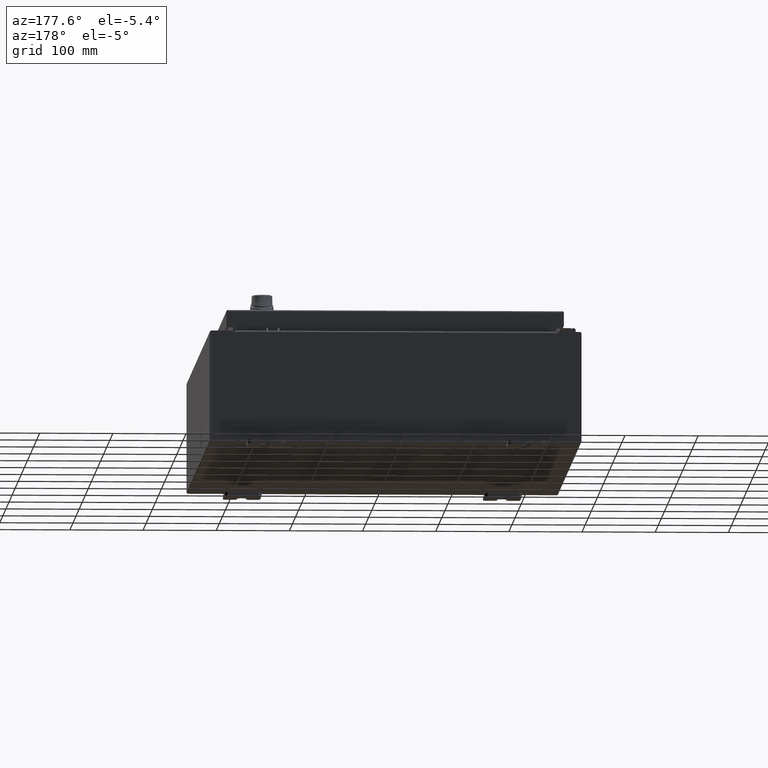
[diagram: clean part render]
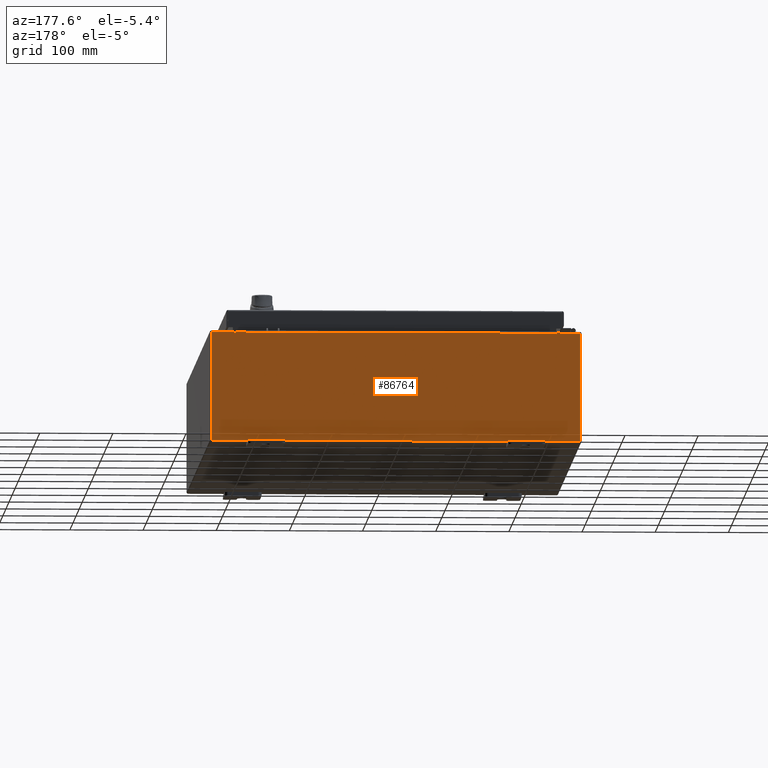
[diagram: same view with one face highlighted and labeled with its STEP entity id]
A machine part, auxiliary view. The second image highlights one B-rep face of the part: STEP entity #86764.
In plain terms, the highlighted planar face has unit normal (0, -1, 0).
Its self-contained STEP definition (entity closure, byte-faithful):
#653 = CARTESIAN_POINT ( 'NONE',  ( -8.637199999999996400, -0.0000000000000000000, 2.874950000000000600 ) ) ;
#1501 = DIRECTION ( 'NONE',  ( 0.0000000000000000000, 0.0000000000000000000, 1.000000000000000000 ) ) ;
#1585 = VECTOR ( 'NONE', #25096, 39.37007874015748100 ) ;
#3833 = AXIS2_PLACEMENT_3D ( 'NONE', #61465, #6721, #70707 ) ;
#4445 = CARTESIAN_POINT ( 'NONE',  ( 8.637200000000000000, 0.0000000000000000000, 2.912300000000000600 ) ) ;
#4482 = LINE ( 'NONE', #79484, #1585 ) ;
#5955 = VERTEX_POINT ( 'NONE', #4445 ) ;
#6480 = VERTEX_POINT ( 'NONE', #41391 ) ;
#6721 = DIRECTION ( 'NONE',  ( 0.0000000000000000000, -1.000000000000000000, 0.0000000000000000000 ) ) ;
#7218 = VERTEX_POINT ( 'NONE', #97298 ) ;
#8973 = CARTESIAN_POINT ( 'NONE',  ( 8.674549999999813500, -0.0000000000000000000, -5.647877341832707700E-013 ) ) ;
#11235 = EDGE_LOOP ( 'NONE', ( #83068, #27106, #63090, #53075, #77131, #61195, #94875, #53794, #17752, #58525, #36137, #80576 ) ) ;
#12021 = AXIS2_PLACEMENT_3D ( 'NONE', #43651, #107660, #52834 ) ;
#12041 = VECTOR ( 'NONE', #95657, 39.37007874015748100 ) ;
#17297 = LINE ( 'NONE', #113691, #111726 ) ;
#17752 = ORIENTED_EDGE ( 'NONE', *, *, #74899, .T. ) ;
#17897 = EDGE_CURVE ( 'NONE', #29270, #116234, #47215, .T. ) ;
#17986 = FACE_OUTER_BOUND ( 'NONE', #11235, .T. ) ;
#18159 = DIRECTION ( 'NONE',  ( -6.510859170600007400E-014, 0.0000000000000000000, -1.000000000000000000 ) ) ;
#20502 = DIRECTION ( 'NONE',  ( -0.0000000000000000000, 1.000000000000000000, -0.0000000000000000000 ) ) ;
#22597 = EDGE_CURVE ( 'NONE', #87599, #68899, #85029, .T. ) ;
#23013 = VECTOR ( 'NONE', #107024, 39.37007874015748100 ) ;
#23794 = LINE ( 'NONE', #8973, #45249 ) ;
#24063 = CARTESIAN_POINT ( 'NONE',  ( -9.925300000000000000, 0.0000000000000000000, 2.925300000000000500 ) ) ;
#24114 = CARTESIAN_POINT ( 'NONE',  ( 8.674550000000000000, 0.0000000000000000000, 2.874950000000000600 ) ) ;
#25096 = DIRECTION ( 'NONE',  ( -0.0000000000000000000, -0.0000000000000000000, 1.000000000000000000 ) ) ;
#25903 = EDGE_CURVE ( 'NONE', #53575, #6480, #4482, .T. ) ;
#26517 = CARTESIAN_POINT ( 'NONE',  ( -8.674549999999996400, 0.0000000000000000000, 2.874950000000000600 ) ) ;
#27106 = ORIENTED_EDGE ( 'NONE', *, *, #116027, .F. ) ;
#27313 = VECTOR ( 'NONE', #53622, 39.37007874015748100 ) ;
#27679 = CARTESIAN_POINT ( 'NONE',  ( 8.674550000000001800, 0.0000000000000000000, 2.925300000000000500 ) ) ;
#28125 = LINE ( 'NONE', #24063, #101169 ) ;
#29270 = VERTEX_POINT ( 'NONE', #24114 ) ;
#33209 = DIRECTION ( 'NONE',  ( 1.000000000000000000, 0.0000000000000000000, 0.0000000000000000000 ) ) ;
#33371 = DIRECTION ( 'NONE',  ( 0.0000000000000000000, 0.0000000000000000000, -1.000000000000000000 ) ) ;
#33864 = PLANE ( 'NONE',  #3833 ) ;
#35495 = CARTESIAN_POINT ( 'NONE',  ( -8.674549999999996400, 0.0000000000000000000, 2.925300000000000500 ) ) ;
#35897 = EDGE_CURVE ( 'NONE', #7218, #117970, #17297, .T. ) ;
#36137 = ORIENTED_EDGE ( 'NONE', *, *, #25903, .T. ) ;
#41391 = CARTESIAN_POINT ( 'NONE',  ( -9.925300000000000000, 0.0000000000000000000, 2.925300000000000500 ) ) ;
#43006 = CARTESIAN_POINT ( 'NONE',  ( -9.925300000000000000, 0.0000000000000000000, -2.925299999999999600 ) ) ;
#43651 = CARTESIAN_POINT ( 'NONE',  ( 8.655875000000000000, 0.0000000000000000000, 2.874950000000000600 ) ) ;
#45249 = VECTOR ( 'NONE', #18159, 39.37007874015748100 ) ;
#47116 = CARTESIAN_POINT ( 'NONE',  ( 8.637200000000000000, 0.0000000000000000000, 0.0000000000000000000 ) ) ;
#47215 = CIRCLE ( 'NONE', #12021, 0.01867500000000003900 ) ;
#47679 = DIRECTION ( 'NONE',  ( 0.0000000000000000000, 0.0000000000000000000, 1.000000000000000000 ) ) ;
#50264 = LINE ( 'NONE', #102555, #71759 ) ;
#52834 = DIRECTION ( 'NONE',  ( 0.0000000000000000000, 0.0000000000000000000, -1.000000000000000000 ) ) ;
#53075 = ORIENTED_EDGE ( 'NONE', *, *, #73053, .T. ) ;
#53575 = VERTEX_POINT ( 'NONE', #69666 ) ;
#53622 = DIRECTION ( 'NONE',  ( 1.000000000000000000, 0.0000000000000000000, 0.0000000000000000000 ) ) ;
#53794 = ORIENTED_EDGE ( 'NONE', *, *, #22597, .T. ) ;
#54965 = EDGE_CURVE ( 'NONE', #87599, #29270, #23794, .T. ) ;
#56808 = LINE ( 'NONE', #47116, #72608 ) ;
#58525 = ORIENTED_EDGE ( 'NONE', *, *, #107591, .T. ) ;
#58782 = CARTESIAN_POINT ( 'NONE',  ( -9.925300000000000000, 0.0000000000000000000, 2.925300000000000500 ) ) ;
#58847 = DIRECTION ( 'NONE',  ( 0.0000000000000000000, 0.0000000000000000000, -1.000000000000000000 ) ) ;
#61110 = AXIS2_PLACEMENT_3D ( 'NONE', #75290, #20502, #84484 ) ;
#61195 = ORIENTED_EDGE ( 'NONE', *, *, #17897, .F. ) ;
#61465 = CARTESIAN_POINT ( 'NONE',  ( 0.0000000000000000000, 0.0000000000000000000, 0.0000000000000000000 ) ) ;
#62830 = CARTESIAN_POINT ( 'NONE',  ( -8.637200000000000000, 1.024442997624098700E-016, 2.912300000000000600 ) ) ;
#63090 = ORIENTED_EDGE ( 'NONE', *, *, #35897, .F. ) ;
#67152 = LINE ( 'NONE', #97426, #115919 ) ;
#68899 = VERTEX_POINT ( 'NONE', #84380 ) ;
#69666 = CARTESIAN_POINT ( 'NONE',  ( -9.925300000000000000, 0.0000000000000000000, -2.925299999999999600 ) ) ;
#70707 = DIRECTION ( 'NONE',  ( 0.0000000000000000000, -0.0000000000000000000, -1.000000000000000000 ) ) ;
#71759 = VECTOR ( 'NONE', #47679, 39.37007874015748100 ) ;
#72608 = VECTOR ( 'NONE', #1501, 39.37007874015748100 ) ;
#72713 = EDGE_CURVE ( 'NONE', #74225, #107396, #50264, .T. ) ;
#73053 = EDGE_CURVE ( 'NONE', #7218, #5955, #75990, .T. ) ;
#74225 = VERTEX_POINT ( 'NONE', #26517 ) ;
#74899 = EDGE_CURVE ( 'NONE', #68899, #89875, #67152, .T. ) ;
#75290 = CARTESIAN_POINT ( 'NONE',  ( -8.655874999999996400, 0.0000000000000000000, 2.874950000000000600 ) ) ;
#75990 = LINE ( 'NONE', #62830, #27313 ) ;
#77131 = ORIENTED_EDGE ( 'NONE', *, *, #97953, .F. ) ;
#77767 = EDGE_CURVE ( 'NONE', #6480, #107396, #28125, .T. ) ;
#79484 = CARTESIAN_POINT ( 'NONE',  ( -9.925300000000000000, 0.0000000000000000000, 2.925300000000000500 ) ) ;
#80576 = ORIENTED_EDGE ( 'NONE', *, *, #77767, .T. ) ;
#81261 = CARTESIAN_POINT ( 'NONE',  ( 8.637200000000000000, 0.0000000000000000000, 2.874950000000000600 ) ) ;
#83068 = ORIENTED_EDGE ( 'NONE', *, *, #72713, .F. ) ;
#84380 = CARTESIAN_POINT ( 'NONE',  ( 9.925300000000000000, 0.0000000000000000000, 2.925300000000000500 ) ) ;
#84484 = DIRECTION ( 'NONE',  ( 0.0000000000000000000, 0.0000000000000000000, -1.000000000000000000 ) ) ;
#85029 = LINE ( 'NONE', #58782, #12041 ) ;
#86764 = ADVANCED_FACE ( 'NONE', ( #17986 ), #33864, .F. ) ;
#87599 = VERTEX_POINT ( 'NONE', #27679 ) ;
#89002 = CARTESIAN_POINT ( 'NONE',  ( 9.925300000000000000, 0.0000000000000000000, -2.925299999999999600 ) ) ;
#89875 = VERTEX_POINT ( 'NONE', #89002 ) ;
#93168 = LINE ( 'NONE', #43006, #23013 ) ;
#94875 = ORIENTED_EDGE ( 'NONE', *, *, #54965, .F. ) ;
#95657 = DIRECTION ( 'NONE',  ( 1.000000000000000000, 0.0000000000000000000, 0.0000000000000000000 ) ) ;
#97298 = CARTESIAN_POINT ( 'NONE',  ( -8.637199999999996400, 1.024442997624098700E-016, 2.912300000000000600 ) ) ;
#97426 = CARTESIAN_POINT ( 'NONE',  ( 9.925300000000000000, 0.0000000000000000000, 2.925300000000000500 ) ) ;
#97953 = EDGE_CURVE ( 'NONE', #116234, #5955, #56808, .T. ) ;
#101169 = VECTOR ( 'NONE', #33209, 39.37007874015748100 ) ;
#102555 = CARTESIAN_POINT ( 'NONE',  ( -8.674549999999996400, -0.0000000000000000000, 0.0000000000000000000 ) ) ;
#107024 = DIRECTION ( 'NONE',  ( -1.000000000000000000, -0.0000000000000000000, -0.0000000000000000000 ) ) ;
#107396 = VERTEX_POINT ( 'NONE', #35495 ) ;
#107591 = EDGE_CURVE ( 'NONE', #89875, #53575, #93168, .T. ) ;
#107660 = DIRECTION ( 'NONE',  ( -0.0000000000000000000, 1.000000000000000000, -0.0000000000000000000 ) ) ;
#109493 = CIRCLE ( 'NONE', #61110, 0.01867500000000003900 ) ;
#111726 = VECTOR ( 'NONE', #58847, 39.37007874015748100 ) ;
#113691 = CARTESIAN_POINT ( 'NONE',  ( -8.637199999999996400, -0.0000000000000000000, 0.0000000000000000000 ) ) ;
#115919 = VECTOR ( 'NONE', #33371, 39.37007874015748100 ) ;
#116027 = EDGE_CURVE ( 'NONE', #117970, #74225, #109493, .T. ) ;
#116234 = VERTEX_POINT ( 'NONE', #81261 ) ;
#117970 = VERTEX_POINT ( 'NONE', #653 ) ;